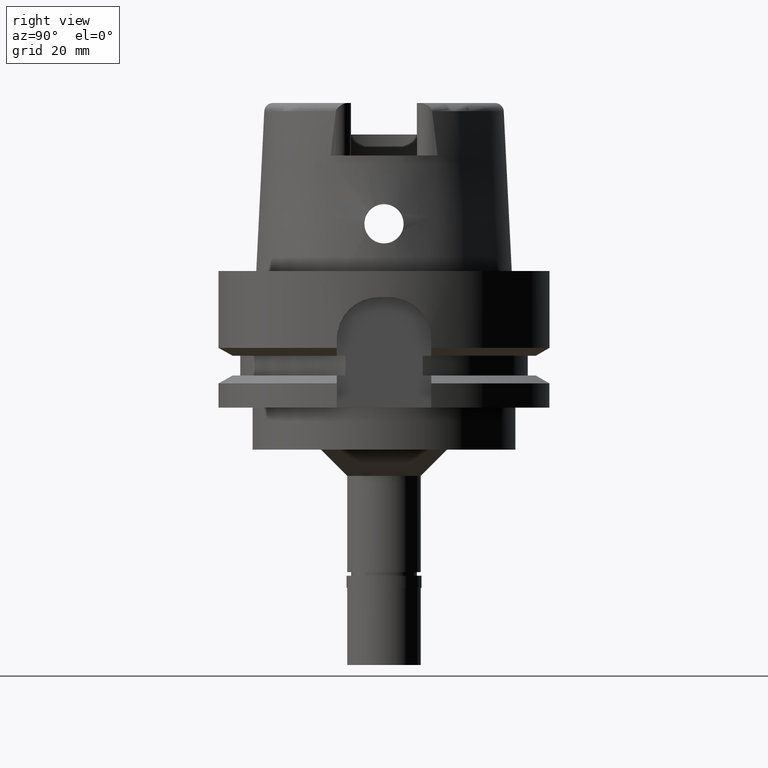
[diagram: clean part render]
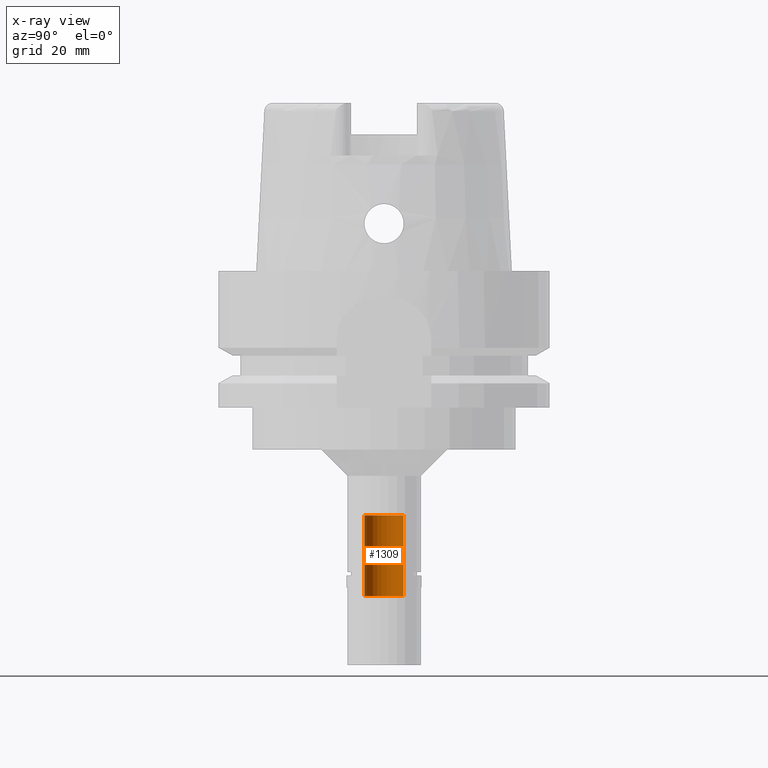
[diagram: x-ray — body ghosted, one internal face saturated and labeled with its STEP entity id]
A machine part, right view, then the same camera in x-ray: the body is ghosted and one INTERNAL B-rep face — a face not visible from any outside direction — is saturated and labeled: STEP entity #1309.
In plain terms, the highlighted cylindrical surface (edge-blend (fillet) strip) has radius 3.7 mm, axis along (0, 0, 1).
Its self-contained STEP definition (entity closure, byte-faithful):
#429 = CARTESIAN_POINT ( 'NONE',  ( 0.0000000000000000000, -3.700000000000000178, -46.50000000000000000 ) ) ;
#761 = AXIS2_PLACEMENT_3D ( 'NONE', #1339, #3158, #4770 ) ;
#798 = DIRECTION ( 'NONE',  ( 0.0000000000000000000, 1.000000000000000000, 0.0000000000000000000 ) ) ;
#824 = VECTOR ( 'NONE', #1043, 1000.000000000000000 ) ;
#1013 = EDGE_CURVE ( 'NONE', #2003, #3385, #3393, .T. ) ;
#1037 = CIRCLE ( 'NONE', #761, 3.700000000000000178 ) ;
#1043 = DIRECTION ( 'NONE',  ( 0.0000000000000000000, 1.538526331033999949E-14, 1.000000000000000000 ) ) ;
#1078 = ORIENTED_EDGE ( 'NONE', *, *, #2706, .F. ) ;
#1104 = CARTESIAN_POINT ( 'NONE',  ( 0.0000000000000000000, 3.700000000000000178, -61.85595815778999906 ) ) ;
#1228 = CARTESIAN_POINT ( 'NONE',  ( 0.0000000000000000000, 0.0000000000000000000, -76.14999999999999147 ) ) ;
#1309 = ADVANCED_FACE ( 'NONE', ( #2103 ), #2048, .F. ) ;
#1339 = CARTESIAN_POINT ( 'NONE',  ( 0.0000000000000000000, 0.0000000000000000000, -46.50000000000000000 ) ) ;
#1797 = ORIENTED_EDGE ( 'NONE', *, *, #5507, .T. ) ;
#1826 = DIRECTION ( 'NONE',  ( 0.0000000000000000000, 0.0000000000000000000, -1.000000000000000000 ) ) ;
#2003 = VERTEX_POINT ( 'NONE', #3028 ) ;
#2048 = CYLINDRICAL_SURFACE ( 'NONE', #3042, 3.700000000000000178 ) ;
#2088 = ORIENTED_EDGE ( 'NONE', *, *, #1013, .T. ) ;
#2103 = FACE_OUTER_BOUND ( 'NONE', #5500, .T. ) ;
#2216 = CARTESIAN_POINT ( 'NONE',  ( 0.0000000000000000000, 0.0000000000000000000, -61.85595815778999906 ) ) ;
#2287 = LINE ( 'NONE', #4027, #5371 ) ;
#2307 = LINE ( 'NONE', #5407, #824 ) ;
#2445 = CARTESIAN_POINT ( 'NONE',  ( 0.0000000000000000000, 3.700000000000000178, -46.50000000000000000 ) ) ;
#2706 = EDGE_CURVE ( 'NONE', #2003, #3090, #2287, .T. ) ;
#3028 = CARTESIAN_POINT ( 'NONE',  ( 0.0000000000000000000, -3.700000000000000178, -61.85595815778999906 ) ) ;
#3042 = AXIS2_PLACEMENT_3D ( 'NONE', #1228, #3340, #798 ) ;
#3090 = VERTEX_POINT ( 'NONE', #429 ) ;
#3158 = DIRECTION ( 'NONE',  ( 0.0000000000000000000, 0.0000000000000000000, 1.000000000000000000 ) ) ;
#3272 = EDGE_CURVE ( 'NONE', #3385, #3444, #2307, .T. ) ;
#3340 = DIRECTION ( 'NONE',  ( 0.0000000000000000000, 0.0000000000000000000, 1.000000000000000000 ) ) ;
#3385 = VERTEX_POINT ( 'NONE', #1104 ) ;
#3393 = CIRCLE ( 'NONE', #5025, 3.700000000000000178 ) ;
#3444 = VERTEX_POINT ( 'NONE', #2445 ) ;
#3537 = DIRECTION ( 'NONE',  ( 0.0000000000000000000, -1.538526331033999949E-14, 1.000000000000000000 ) ) ;
#3747 = ORIENTED_EDGE ( 'NONE', *, *, #3272, .T. ) ;
#4027 = CARTESIAN_POINT ( 'NONE',  ( 0.0000000000000000000, -3.700000000000000178, -61.85595815778999906 ) ) ;
#4770 = DIRECTION ( 'NONE',  ( 0.0000000000000000000, 1.000000000000000000, 0.0000000000000000000 ) ) ;
#5025 = AXIS2_PLACEMENT_3D ( 'NONE', #2216, #1826, #5238 ) ;
#5238 = DIRECTION ( 'NONE',  ( 0.0000000000000000000, -1.000000000000000000, 0.0000000000000000000 ) ) ;
#5371 = VECTOR ( 'NONE', #3537, 1000.000000000000000 ) ;
#5407 = CARTESIAN_POINT ( 'NONE',  ( 0.0000000000000000000, 3.700000000000000178, -61.85595815778999906 ) ) ;
#5500 = EDGE_LOOP ( 'NONE', ( #1797, #1078, #2088, #3747 ) ) ;
#5507 = EDGE_CURVE ( 'NONE', #3444, #3090, #1037, .T. ) ;